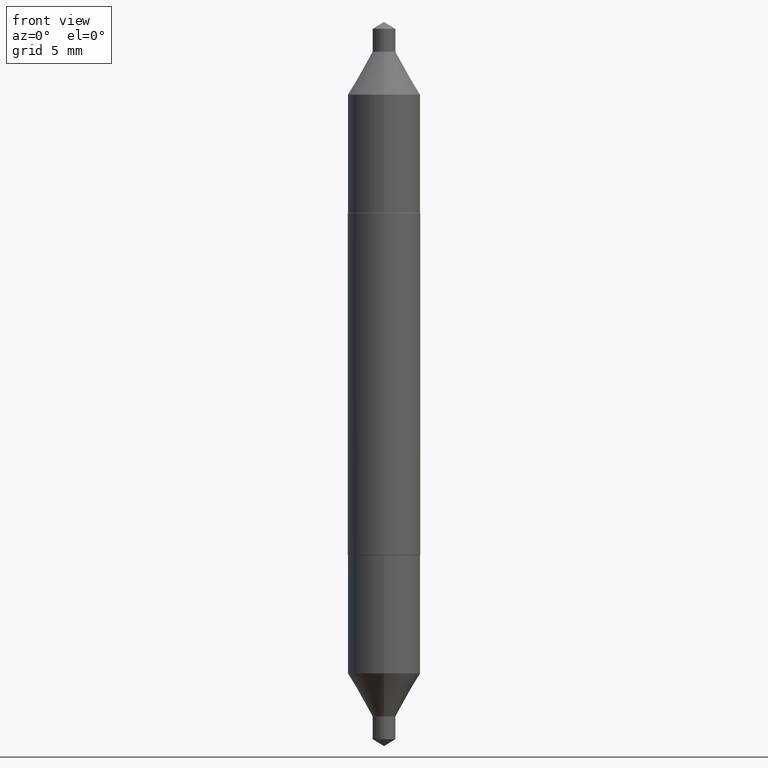
[diagram: clean part render]
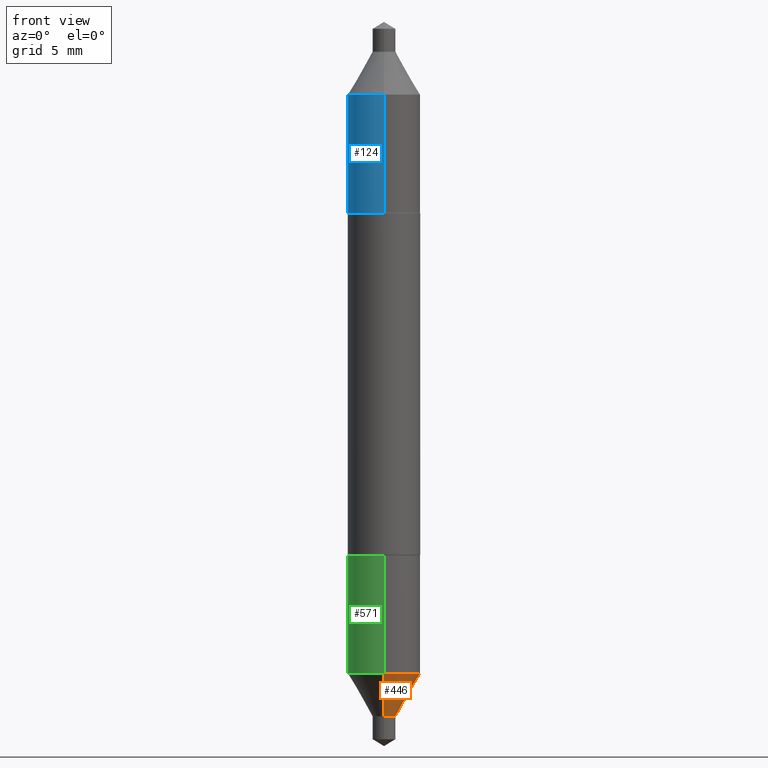
[diagram: same view with three faces highlighted in distinct colors, each labeled with its STEP entity id]
A machine part, front view with three faces highlighted in distinct colors.
Their STEP definitions:

[orange] entity #446 — the highlighted conical surface has half-angle 30 deg.
#8 = CARTESIAN_POINT ( 'NONE',  ( -4.329436860165363363E-16, -0.06200000000000172734, -0.4955342508398351553 ) ) ;
#19 = EDGE_LOOP ( 'NONE', ( #317, #536, #641, #488 ) ) ;
#51 = CARTESIAN_POINT ( 'NONE',  ( 1.400359149964906176E-29, -1.972526913871403021E-15, -0.5687999999999999723 ) ) ;
#79 = AXIS2_PLACEMENT_3D ( 'NONE', #531, #690, #419 ) ;
#109 = CARTESIAN_POINT ( 'NONE',  ( 1.399769189447536068E-16, 0.01969999999999801424, -0.5687999999999999723 ) ) ;
#111 = VERTEX_POINT ( 'NONE', #564 ) ;
#168 = VECTOR ( 'NONE', #582, 39.37007874015748143 ) ;
#180 = AXIS2_PLACEMENT_3D ( 'NONE', #51, #432, #525 ) ;
#214 = CARTESIAN_POINT ( 'NONE',  ( 1.218699198171901377E-29, -1.720287953521743854E-15, -0.4955342508398353774 ) ) ;
#268 = FACE_OUTER_BOUND ( 'NONE', #19, .T. ) ;
#309 = DIRECTION ( 'NONE',  ( -2.479466242758017580E-29, 3.442795074656859264E-15, 1.000000000000000000 ) ) ;
#317 = ORIENTED_EDGE ( 'NONE', *, *, #468, .T. ) ;
#319 = VERTEX_POINT ( 'NONE', #578 ) ;
#321 = CARTESIAN_POINT ( 'NONE',  ( 1.399769189447545683E-16, 0.01969999999999801424, -0.5687999999999999723 ) ) ;
#324 = DIRECTION ( 'NONE',  ( -6.982962677686265922E-15, -1.000000000000000000, 3.304654831045479413E-15 ) ) ;
#325 = EDGE_CURVE ( 'NONE', #111, #637, #458, .T. ) ;
#391 = VECTOR ( 'NONE', #399, 39.37007874015748854 ) ;
#399 = DIRECTION ( 'NONE',  ( -3.491481338843116000E-15, -0.4999999999999914513, 0.8660254037844434816 ) ) ;
#419 = DIRECTION ( 'NONE',  ( -6.982962677686265133E-15, -1.000000000000000000, 3.466812174700844249E-15 ) ) ;
#432 = DIRECTION ( 'NONE',  ( -2.479466242758017580E-29, 3.442795074656859264E-15, 1.000000000000000000 ) ) ;
#446 = ADVANCED_FACE ( 'NONE', ( #268 ), #523, .T. ) ;
#453 = CIRCLE ( 'NONE', #463, 0.06200000000000000649 ) ;
#458 = LINE ( 'NONE', #681, #391 ) ;
#463 = AXIS2_PLACEMENT_3D ( 'NONE', #214, #309, #324 ) ;
#468 = EDGE_CURVE ( 'NONE', #111, #541, #586, .T. ) ;
#476 = EDGE_CURVE ( 'NONE', #541, #319, #593, .T. ) ;
#488 = ORIENTED_EDGE ( 'NONE', *, *, #325, .F. ) ;
#510 = EDGE_CURVE ( 'NONE', #637, #319, #453, .T. ) ;
#523 = CONICAL_SURFACE ( 'NONE', #79, 0.01969999999999998488, 0.5235987755982925984 ) ;
#525 = DIRECTION ( 'NONE',  ( -6.982962677686265133E-15, -1.000000000000000000, 3.466812174700844249E-15 ) ) ;
#531 = CARTESIAN_POINT ( 'NONE',  ( 1.400359149964906176E-29, -1.972526913871403021E-15, -0.5687999999999999723 ) ) ;
#536 = ORIENTED_EDGE ( 'NONE', *, *, #476, .T. ) ;
#541 = VERTEX_POINT ( 'NONE', #321 ) ;
#564 = CARTESIAN_POINT ( 'NONE',  ( -1.375643647504053107E-16, -0.01970000000000195553, -0.5687999999999998613 ) ) ;
#578 = CARTESIAN_POINT ( 'NONE',  ( 4.405364961712718249E-16, 0.06199999999999829259, -0.4955342508398355439 ) ) ;
#582 = DIRECTION ( 'NONE',  ( 3.552713678800440581E-15, 0.4999999999999975575, 0.8660254037844400399 ) ) ;
#586 = CIRCLE ( 'NONE', #180, 0.01969999999999998488 ) ;
#593 = LINE ( 'NONE', #109, #168 ) ;
#637 = VERTEX_POINT ( 'NONE', #8 ) ;
#641 = ORIENTED_EDGE ( 'NONE', *, *, #510, .F. ) ;
#681 = CARTESIAN_POINT ( 'NONE',  ( -1.375643647504053107E-16, -0.01970000000000195553, -0.5687999999999998613 ) ) ;
#690 = DIRECTION ( 'NONE',  ( -2.479466242758017580E-29, 3.442795074656859264E-15, 1.000000000000000000 ) ) ;

[blue] entity #124 — the highlighted cylindrical surface (edge-blend (fillet) strip) has radius 1.5748 mm, axis along (0, -0, -1).
#16 = ORIENTED_EDGE ( 'NONE', *, *, #153, .F. ) ;
#28 = CARTESIAN_POINT ( 'NONE',  ( 4.253508758618278662E-16, 0.06200000000000175510, 0.4955342508398351553 ) ) ;
#55 = EDGE_CURVE ( 'NONE', #289, #100, #304, .T. ) ;
#68 = CARTESIAN_POINT ( 'NONE',  ( -1.204927907478374845E-29, 1.740009225608063244E-15, 0.4955342508398353774 ) ) ;
#72 = LINE ( 'NONE', #443, #452 ) ;
#100 = VERTEX_POINT ( 'NONE', #547 ) ;
#124 = ADVANCED_FACE ( 'NONE', ( #352 ), #614, .T. ) ;
#133 = DIRECTION ( 'NONE',  ( 2.411471369612255613E-29, -3.540167603029431901E-15, -1.000000000000000000 ) ) ;
#153 = EDGE_CURVE ( 'NONE', #100, #628, #72, .T. ) ;
#187 = CARTESIAN_POINT ( 'NONE',  ( -7.165223602122447572E-30, 1.023004032281041323E-15, 0.2929999999999999272 ) ) ;
#196 = DIRECTION ( 'NONE',  ( 2.411471369612255613E-29, -3.540167603029431901E-15, -1.000000000000000000 ) ) ;
#233 = CARTESIAN_POINT ( 'NONE',  ( -4.329436860165556141E-16, -0.06199999999999897260, 0.2930000000000001492 ) ) ;
#242 = EDGE_LOOP ( 'NONE', ( #660, #594, #540, #16 ) ) ;
#261 = AXIS2_PLACEMENT_3D ( 'NONE', #187, #414, #345 ) ;
#267 = VERTEX_POINT ( 'NONE', #542 ) ;
#289 = VERTEX_POINT ( 'NONE', #28 ) ;
#304 = CIRCLE ( 'NONE', #503, 0.06200000000000000649 ) ;
#343 = DIRECTION ( 'NONE',  ( -6.982962677686265922E-15, -1.000000000000000000, 3.304654831045479808E-15 ) ) ;
#345 = DIRECTION ( 'NONE',  ( -6.982962677686265922E-15, -1.000000000000000000, 3.304654831045479808E-15 ) ) ;
#351 = EDGE_CURVE ( 'NONE', #267, #628, #482, .T. ) ;
#352 = FACE_OUTER_BOUND ( 'NONE', #242, .T. ) ;
#368 = AXIS2_PLACEMENT_3D ( 'NONE', #657, #133, #343 ) ;
#414 = DIRECTION ( 'NONE',  ( -2.411471369612255613E-29, 3.540167603029431901E-15, 1.000000000000000000 ) ) ;
#416 = EDGE_CURVE ( 'NONE', #289, #267, #625, .T. ) ;
#443 = CARTESIAN_POINT ( 'NONE',  ( -4.329436860165556141E-16, -0.06199999999999897260, 0.2930000000000001492 ) ) ;
#452 = VECTOR ( 'NONE', #498, 39.37007874015748143 ) ;
#464 = CARTESIAN_POINT ( 'NONE',  ( 4.253508758618277676E-16, 0.06200000000000101957, 0.2929999999999997051 ) ) ;
#471 = VECTOR ( 'NONE', #196, 39.37007874015748143 ) ;
#482 = CIRCLE ( 'NONE', #261, 0.06199999999999999956 ) ;
#498 = DIRECTION ( 'NONE',  ( 2.411471369612255613E-29, -3.540167603029431901E-15, -1.000000000000000000 ) ) ;
#503 = AXIS2_PLACEMENT_3D ( 'NONE', #68, #667, #608 ) ;
#540 = ORIENTED_EDGE ( 'NONE', *, *, #351, .T. ) ;
#542 = CARTESIAN_POINT ( 'NONE',  ( 4.253508758618253517E-16, 0.06200000000000101957, 0.2929999999999997051 ) ) ;
#547 = CARTESIAN_POINT ( 'NONE',  ( -4.329436860165605938E-16, -0.06199999999999826483, 0.4955342508398355439 ) ) ;
#594 = ORIENTED_EDGE ( 'NONE', *, *, #416, .T. ) ;
#608 = DIRECTION ( 'NONE',  ( -6.982962677686265922E-15, -1.000000000000000000, 3.304654831045479413E-15 ) ) ;
#614 = CYLINDRICAL_SURFACE ( 'NONE', #368, 0.06199999999999999956 ) ;
#625 = LINE ( 'NONE', #464, #471 ) ;
#628 = VERTEX_POINT ( 'NONE', #233 ) ;
#657 = CARTESIAN_POINT ( 'NONE',  ( -7.165223602122447572E-30, 1.023004032281041323E-15, 0.2929999999999999272 ) ) ;
#660 = ORIENTED_EDGE ( 'NONE', *, *, #55, .F. ) ;
#667 = DIRECTION ( 'NONE',  ( -2.411471369612255613E-29, 3.540167603029431901E-15, 1.000000000000000000 ) ) ;

[green] entity #571 — the highlighted cylindrical surface (edge-blend (fillet) strip) has radius 1.5748 mm, axis along (-0, 0, 1).
#8 = CARTESIAN_POINT ( 'NONE',  ( -4.329436860165363363E-16, -0.06200000000000172734, -0.4955342508398351553 ) ) ;
#46 = CARTESIAN_POINT ( 'NONE',  ( 7.165223602122447572E-30, -1.023004032281041323E-15, -0.2929999999999999272 ) ) ;
#47 = EDGE_CURVE ( 'NONE', #637, #341, #437, .T. ) ;
#54 = EDGE_LOOP ( 'NONE', ( #527, #549, #235, #499 ) ) ;
#59 = AXIS2_PLACEMENT_3D ( 'NONE', #141, #467, #360 ) ;
#107 = FACE_OUTER_BOUND ( 'NONE', #54, .T. ) ;
#122 = CARTESIAN_POINT ( 'NONE',  ( 4.405364961712740929E-16, 0.06199999999999896566, -0.2930000000000001492 ) ) ;
#141 = CARTESIAN_POINT ( 'NONE',  ( 7.165223602122447572E-30, -1.023004032281041323E-15, -0.2929999999999999272 ) ) ;
#206 = AXIS2_PLACEMENT_3D ( 'NONE', #46, #697, #596 ) ;
#232 = EDGE_CURVE ( 'NONE', #319, #674, #269, .T. ) ;
#235 = ORIENTED_EDGE ( 'NONE', *, *, #47, .T. ) ;
#269 = LINE ( 'NONE', #474, #695 ) ;
#301 = CARTESIAN_POINT ( 'NONE',  ( 1.218699198171901377E-29, -1.720287953521743854E-15, -0.4955342508398353774 ) ) ;
#310 = EDGE_CURVE ( 'NONE', #674, #341, #620, .T. ) ;
#319 = VERTEX_POINT ( 'NONE', #578 ) ;
#341 = VERTEX_POINT ( 'NONE', #412 ) ;
#356 = DIRECTION ( 'NONE',  ( -6.982962677686265922E-15, -1.000000000000000000, 3.304654831045479413E-15 ) ) ;
#359 = CIRCLE ( 'NONE', #417, 0.06200000000000000649 ) ;
#360 = DIRECTION ( 'NONE',  ( -6.982962677686265922E-15, -1.000000000000000000, 3.304654831045479808E-15 ) ) ;
#380 = EDGE_CURVE ( 'NONE', #319, #637, #359, .T. ) ;
#390 = DIRECTION ( 'NONE',  ( -2.479466242758017580E-29, 3.442795074656859264E-15, 1.000000000000000000 ) ) ;
#412 = CARTESIAN_POINT ( 'NONE',  ( -4.329436860165412667E-16, -0.06200000000000101957, -0.2929999999999997051 ) ) ;
#417 = AXIS2_PLACEMENT_3D ( 'NONE', #301, #683, #356 ) ;
#420 = DIRECTION ( 'NONE',  ( -2.479466242758017580E-29, 3.442795074656859264E-15, 1.000000000000000000 ) ) ;
#437 = LINE ( 'NONE', #599, #609 ) ;
#467 = DIRECTION ( 'NONE',  ( -2.479466242758017580E-29, 3.442795074656859264E-15, 1.000000000000000000 ) ) ;
#474 = CARTESIAN_POINT ( 'NONE',  ( 4.405364961712692118E-16, 0.06199999999999897260, -0.2930000000000001492 ) ) ;
#477 = CYLINDRICAL_SURFACE ( 'NONE', #206, 0.06199999999999999956 ) ;
#499 = ORIENTED_EDGE ( 'NONE', *, *, #310, .F. ) ;
#527 = ORIENTED_EDGE ( 'NONE', *, *, #232, .F. ) ;
#549 = ORIENTED_EDGE ( 'NONE', *, *, #380, .T. ) ;
#571 = ADVANCED_FACE ( 'NONE', ( #107 ), #477, .T. ) ;
#578 = CARTESIAN_POINT ( 'NONE',  ( 4.405364961712718249E-16, 0.06199999999999829259, -0.4955342508398355439 ) ) ;
#596 = DIRECTION ( 'NONE',  ( -6.982962677686265922E-15, -1.000000000000000000, 3.304654831045479808E-15 ) ) ;
#599 = CARTESIAN_POINT ( 'NONE',  ( -4.329436860165412667E-16, -0.06200000000000101957, -0.2929999999999997051 ) ) ;
#609 = VECTOR ( 'NONE', #390, 39.37007874015748143 ) ;
#620 = CIRCLE ( 'NONE', #59, 0.06199999999999999956 ) ;
#637 = VERTEX_POINT ( 'NONE', #8 ) ;
#674 = VERTEX_POINT ( 'NONE', #122 ) ;
#683 = DIRECTION ( 'NONE',  ( -2.479466242758017580E-29, 3.442795074656859264E-15, 1.000000000000000000 ) ) ;
#695 = VECTOR ( 'NONE', #420, 39.37007874015748143 ) ;
#697 = DIRECTION ( 'NONE',  ( -2.479466242758017580E-29, 3.442795074656859264E-15, 1.000000000000000000 ) ) ;